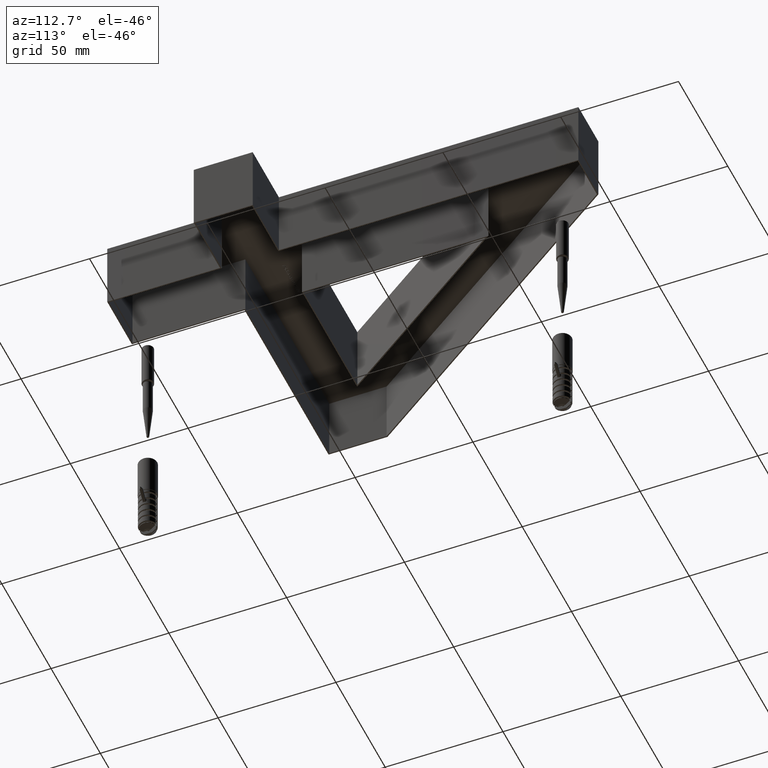
[diagram: clean part render]
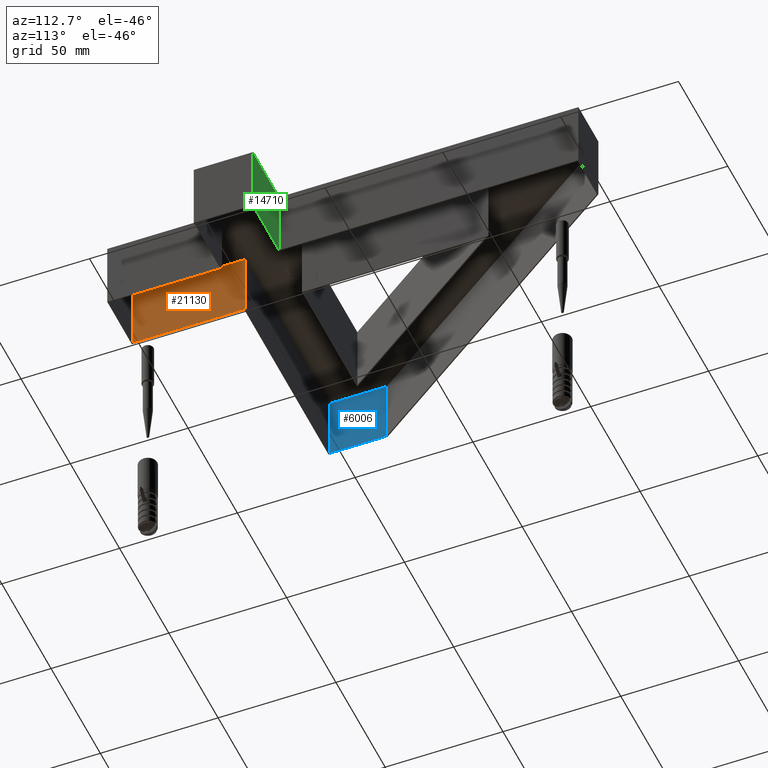
[diagram: same view with three faces highlighted in distinct colors, each labeled with its STEP entity id]
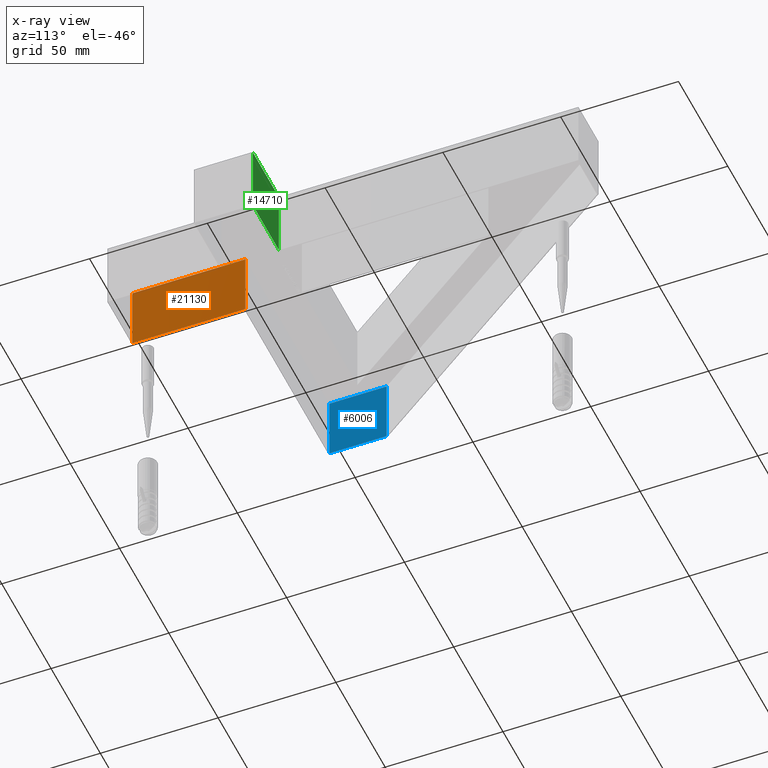
[diagram: x-ray of the same camera — body ghosted, the three highlighted faces saturated]
A machine part, auxiliary view with three faces highlighted in distinct colors.
The next image is the same camera in x-ray (body ghosted, the three faces saturated) — at least one of them is partly hidden behind the body in this view.
Their STEP definitions:

[orange] entity #21130 — the highlighted planar face has unit normal (1, 0, 0).
#255 = FACE_OUTER_BOUND ( 'NONE', #18355, .T. ) ;
#999 = LINE ( 'NONE', #1917, #20889 ) ;
#1873 = LINE ( 'NONE', #2544, #9823 ) ;
#1917 = CARTESIAN_POINT ( 'NONE',  ( -12.00000000000000000, 0.0000000000000000000, 0.0000000000000000000 ) ) ;
#2079 = EDGE_CURVE ( 'NONE', #15483, #22102, #999, .T. ) ;
#2208 = AXIS2_PLACEMENT_3D ( 'NONE', #13481, #9281, #5708 ) ;
#2544 = CARTESIAN_POINT ( 'NONE',  ( -12.00000000000000000, 0.0000000000000000000, -28.00000000000000000 ) ) ;
#2885 = CARTESIAN_POINT ( 'NONE',  ( -12.00000000000000000, 48.37878787878740600, 0.0000000000000000000 ) ) ;
#3562 = LINE ( 'NONE', #13061, #18803 ) ;
#3932 = ORIENTED_EDGE ( 'NONE', *, *, #21106, .T. ) ;
#4487 = CARTESIAN_POINT ( 'NONE',  ( -12.00000000000000000, 0.4999999999999970000, -28.00000000000000000 ) ) ;
#5708 = DIRECTION ( 'NONE',  ( 0.0000000000000000000, 0.0000000000000000000, -1.000000000000000000 ) ) ;
#6856 = DIRECTION ( 'NONE',  ( -0.0000000000000000000, -0.0000000000000000000, 1.000000000000000000 ) ) ;
#7236 = EDGE_CURVE ( 'NONE', #10388, #15483, #14669, .T. ) ;
#9281 = DIRECTION ( 'NONE',  ( 1.000000000000000000, -0.0000000000000000000, 0.0000000000000000000 ) ) ;
#9507 = EDGE_CURVE ( 'NONE', #10947, #22102, #3562, .T. ) ;
#9823 = VECTOR ( 'NONE', #19767, 1000.000000000000000 ) ;
#10272 = ORIENTED_EDGE ( 'NONE', *, *, #2079, .F. ) ;
#10388 = VERTEX_POINT ( 'NONE', #23783 ) ;
#10947 = VERTEX_POINT ( 'NONE', #14119 ) ;
#13061 = CARTESIAN_POINT ( 'NONE',  ( -12.00000000000000000, 48.37878787878740600, -28.00000000000000000 ) ) ;
#13481 = CARTESIAN_POINT ( 'NONE',  ( -12.00000000000000000, 0.0000000000000000000, -28.00000000000000000 ) ) ;
#14119 = CARTESIAN_POINT ( 'NONE',  ( -12.00000000000000000, 48.37878787878740600, -28.00000000000000000 ) ) ;
#14669 = LINE ( 'NONE', #4487, #19623 ) ;
#14831 = CARTESIAN_POINT ( 'NONE',  ( -12.00000000000000000, 0.4999999999999970000, 0.0000000000000000000 ) ) ;
#15483 = VERTEX_POINT ( 'NONE', #14831 ) ;
#18355 = EDGE_LOOP ( 'NONE', ( #10272, #19392, #3932, #22887 ) ) ;
#18803 = VECTOR ( 'NONE', #6856, 1000.000000000000000 ) ;
#19296 = DIRECTION ( 'NONE',  ( -0.0000000000000000000, -0.0000000000000000000, 1.000000000000000000 ) ) ;
#19392 = ORIENTED_EDGE ( 'NONE', *, *, #7236, .F. ) ;
#19623 = VECTOR ( 'NONE', #19296, 1000.000000000000000 ) ;
#19767 = DIRECTION ( 'NONE',  ( 0.0000000000000000000, 1.000000000000000000, 0.0000000000000000000 ) ) ;
#20889 = VECTOR ( 'NONE', #27280, 1000.000000000000000 ) ;
#21106 = EDGE_CURVE ( 'NONE', #10388, #10947, #1873, .T. ) ;
#21130 = ADVANCED_FACE ( 'NONE', ( #255 ), #26775, .T. ) ;
#22102 = VERTEX_POINT ( 'NONE', #2885 ) ;
#22887 = ORIENTED_EDGE ( 'NONE', *, *, #9507, .T. ) ;
#23783 = CARTESIAN_POINT ( 'NONE',  ( -12.00000000000000000, 0.4999999999999970000, -28.00000000000000000 ) ) ;
#26775 = PLANE ( 'NONE',  #2208 ) ;
#27280 = DIRECTION ( 'NONE',  ( 0.0000000000000000000, 1.000000000000000000, 0.0000000000000000000 ) ) ;

[blue] entity #6006 — the highlighted planar face has unit normal (1, 0, 0).
#687 = DIRECTION ( 'NONE',  ( 0.0000000000000000000, 1.000000000000000000, 0.0000000000000000000 ) ) ;
#1327 = DIRECTION ( 'NONE',  ( -0.0000000000000000000, -0.0000000000000000000, 1.000000000000000000 ) ) ;
#1549 = VERTEX_POINT ( 'NONE', #6334 ) ;
#2045 = CARTESIAN_POINT ( 'NONE',  ( -97.17038809144021600, 0.0000000000000000000, -28.00000000000000000 ) ) ;
#2260 = EDGE_CURVE ( 'NONE', #24789, #1549, #12240, .T. ) ;
#3750 = LINE ( 'NONE', #11226, #10316 ) ;
#3816 = LINE ( 'NONE', #15775, #18704 ) ;
#4495 = ORIENTED_EDGE ( 'NONE', *, *, #16646, .F. ) ;
#6006 = ADVANCED_FACE ( 'NONE', ( #11364 ), #10649, .T. ) ;
#6254 = DIRECTION ( 'NONE',  ( 1.000000000000000000, -0.0000000000000000000, 0.0000000000000000000 ) ) ;
#6334 = CARTESIAN_POINT ( 'NONE',  ( -97.17038809144021600, 72.71980160735266500, -28.00000000000000000 ) ) ;
#7452 = CARTESIAN_POINT ( 'NONE',  ( -97.17038809144021600, 48.37878787878740600, -28.00000000000000000 ) ) ;
#8178 = CARTESIAN_POINT ( 'NONE',  ( -97.17038809144021600, 48.37878787878740600, 0.0000000000000000000 ) ) ;
#8787 = VERTEX_POINT ( 'NONE', #11269 ) ;
#9388 = CARTESIAN_POINT ( 'NONE',  ( -97.17038809144021600, 48.37878787878740600, -28.00000000000000000 ) ) ;
#10316 = VECTOR ( 'NONE', #687, 1000.000000000000000 ) ;
#10649 = PLANE ( 'NONE',  #14911 ) ;
#11226 = CARTESIAN_POINT ( 'NONE',  ( -97.17038809144021600, 0.0000000000000000000, 0.0000000000000000000 ) ) ;
#11269 = CARTESIAN_POINT ( 'NONE',  ( -97.17038809144021600, 72.71980160735266500, 0.0000000000000000000 ) ) ;
#11364 = FACE_OUTER_BOUND ( 'NONE', #26510, .T. ) ;
#11623 = VECTOR ( 'NONE', #1327, 1000.000000000000000 ) ;
#11918 = VECTOR ( 'NONE', #21670, 1000.000000000000000 ) ;
#12240 = LINE ( 'NONE', #19898, #11918 ) ;
#14192 = ORIENTED_EDGE ( 'NONE', *, *, #17473, .F. ) ;
#14911 = AXIS2_PLACEMENT_3D ( 'NONE', #2045, #6254, #25646 ) ;
#15126 = VERTEX_POINT ( 'NONE', #8178 ) ;
#15775 = CARTESIAN_POINT ( 'NONE',  ( -97.17038809144021600, 72.71980160735266500, -28.00000000000000000 ) ) ;
#16646 = EDGE_CURVE ( 'NONE', #15126, #8787, #3750, .T. ) ;
#17289 = LINE ( 'NONE', #7452, #11623 ) ;
#17473 = EDGE_CURVE ( 'NONE', #24789, #15126, #17289, .T. ) ;
#17981 = DIRECTION ( 'NONE',  ( -0.0000000000000000000, -0.0000000000000000000, 1.000000000000000000 ) ) ;
#18704 = VECTOR ( 'NONE', #17981, 1000.000000000000000 ) ;
#19898 = CARTESIAN_POINT ( 'NONE',  ( -97.17038809144021600, 0.0000000000000000000, -28.00000000000000000 ) ) ;
#21670 = DIRECTION ( 'NONE',  ( 0.0000000000000000000, 1.000000000000000000, 0.0000000000000000000 ) ) ;
#24789 = VERTEX_POINT ( 'NONE', #9388 ) ;
#25646 = DIRECTION ( 'NONE',  ( 0.0000000000000000000, 0.0000000000000000000, -1.000000000000000000 ) ) ;
#25775 = ORIENTED_EDGE ( 'NONE', *, *, #27110, .T. ) ;
#25927 = ORIENTED_EDGE ( 'NONE', *, *, #2260, .T. ) ;
#26510 = EDGE_LOOP ( 'NONE', ( #4495, #14192, #25927, #25775 ) ) ;
#27110 = EDGE_CURVE ( 'NONE', #1549, #8787, #3816, .T. ) ;

[green] entity #14710 — the highlighted planar face has unit normal (0, -1, 0).
#196 = EDGE_CURVE ( 'NONE', #18722, #6250, #17501, .T. ) ;
#1471 = CARTESIAN_POINT ( 'NONE',  ( 39.10925039872117300, 72.87878787878742100, 1.750000000000000000 ) ) ;
#1629 = CARTESIAN_POINT ( 'NONE',  ( 12.49999999999998000, 72.87878787878742100, 2.000000000000000000 ) ) ;
#3841 = CARTESIAN_POINT ( 'NONE',  ( 12.49999999999998000, 72.87878787878742100, 2.000000000000000000 ) ) ;
#3972 = DIRECTION ( 'NONE',  ( 0.0000000000000000000, -0.0000000000000000000, -1.000000000000000000 ) ) ;
#4597 = CARTESIAN_POINT ( 'NONE',  ( 12.49999999999998000, 72.87878787878742100, 1.750000000000000000 ) ) ;
#4836 = VECTOR ( 'NONE', #10463, 1000.000000000000000 ) ;
#6159 = LINE ( 'NONE', #22304, #24054 ) ;
#6250 = VERTEX_POINT ( 'NONE', #24932 ) ;
#9597 = ORIENTED_EDGE ( 'NONE', *, *, #13913, .F. ) ;
#10399 = FACE_OUTER_BOUND ( 'NONE', #19964, .T. ) ;
#10463 = DIRECTION ( 'NONE',  ( -0.0000000000000000000, -0.0000000000000000000, -1.000000000000000000 ) ) ;
#11116 = EDGE_CURVE ( 'NONE', #25493, #18905, #18748, .T. ) ;
#11436 = ORIENTED_EDGE ( 'NONE', *, *, #196, .F. ) ;
#11482 = VECTOR ( 'NONE', #18554, 1000.000000000000000 ) ;
#13913 = EDGE_CURVE ( 'NONE', #6250, #18905, #6159, .T. ) ;
#13957 = ORIENTED_EDGE ( 'NONE', *, *, #25798, .T. ) ;
#14121 = VECTOR ( 'NONE', #15214, 1000.000000000000000 ) ;
#14612 = PLANE ( 'NONE',  #22154 ) ;
#14710 = ADVANCED_FACE ( 'NONE', ( #10399 ), #14612, .F. ) ;
#15214 = DIRECTION ( 'NONE',  ( 1.000000000000000000, -0.0000000000000000000, -0.0000000000000000000 ) ) ;
#16471 = DIRECTION ( 'NONE',  ( 0.0000000000000000000, -1.000000000000000000, 0.0000000000000000000 ) ) ;
#16670 = CARTESIAN_POINT ( 'NONE',  ( 39.10925039872117300, 72.87878787878742100, -28.00000000000000000 ) ) ;
#17133 = CARTESIAN_POINT ( 'NONE',  ( 12.49999999999998000, 72.87878787878742100, 1.750000000000000000 ) ) ;
#17501 = LINE ( 'NONE', #3841, #11482 ) ;
#18302 = DIRECTION ( 'NONE',  ( 1.000000000000000000, 0.0000000000000000000, 0.0000000000000000000 ) ) ;
#18554 = DIRECTION ( 'NONE',  ( -0.0000000000000000000, -0.0000000000000000000, -1.000000000000000000 ) ) ;
#18722 = VERTEX_POINT ( 'NONE', #4597 ) ;
#18748 = LINE ( 'NONE', #25722, #4836 ) ;
#18905 = VERTEX_POINT ( 'NONE', #16670 ) ;
#19739 = LINE ( 'NONE', #17133, #14121 ) ;
#19964 = EDGE_LOOP ( 'NONE', ( #11436, #13957, #24012, #9597 ) ) ;
#22154 = AXIS2_PLACEMENT_3D ( 'NONE', #1629, #16471, #3972 ) ;
#22304 = CARTESIAN_POINT ( 'NONE',  ( 0.0000000000000000000, 72.87878787878742100, -28.00000000000000000 ) ) ;
#24012 = ORIENTED_EDGE ( 'NONE', *, *, #11116, .T. ) ;
#24054 = VECTOR ( 'NONE', #18302, 1000.000000000000000 ) ;
#24932 = CARTESIAN_POINT ( 'NONE',  ( 12.49999999999998000, 72.87878787878742100, -28.00000000000000000 ) ) ;
#25493 = VERTEX_POINT ( 'NONE', #1471 ) ;
#25722 = CARTESIAN_POINT ( 'NONE',  ( 39.10925039872117300, 72.87878787878742100, 2.000000000000000000 ) ) ;
#25798 = EDGE_CURVE ( 'NONE', #18722, #25493, #19739, .T. ) ;